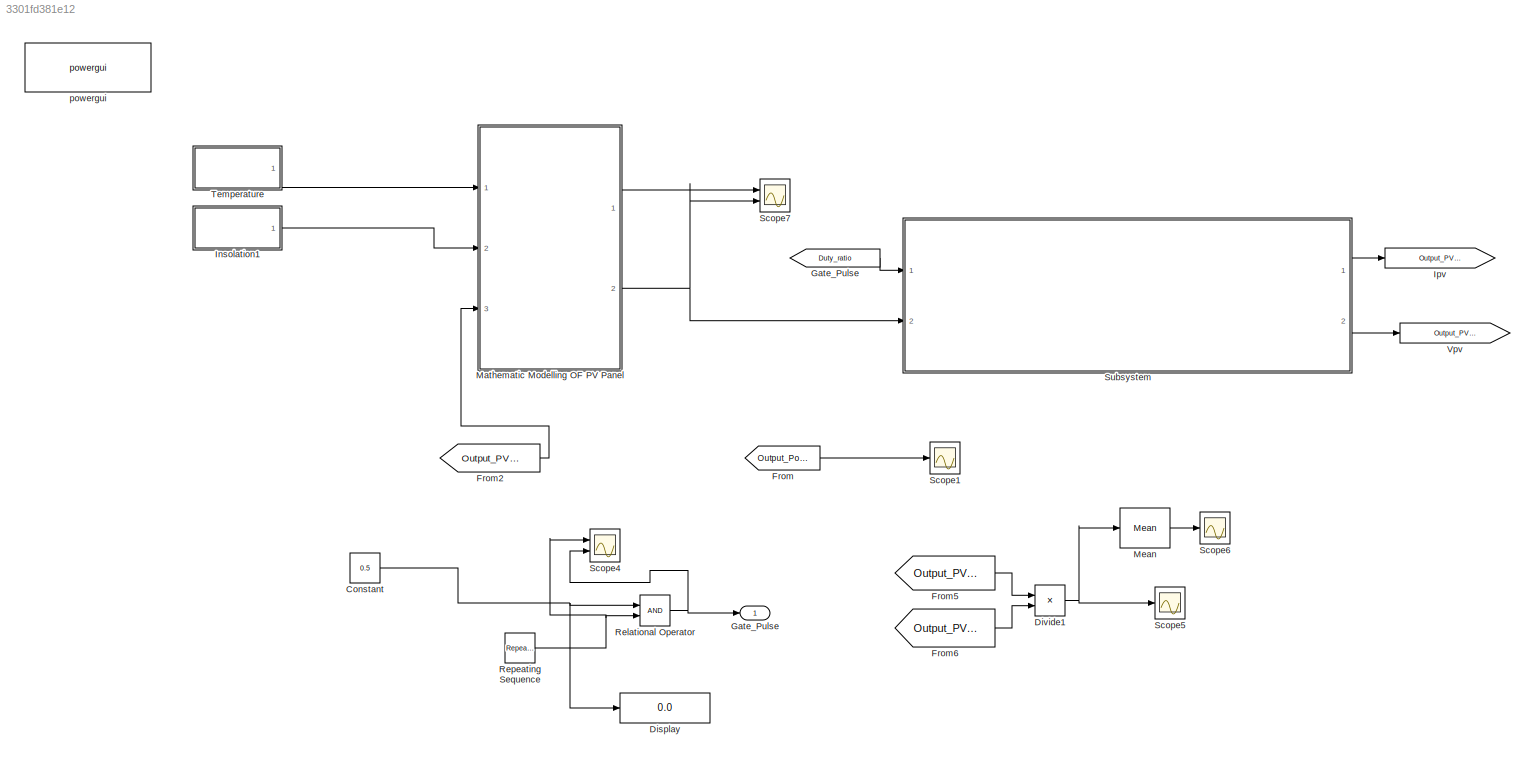
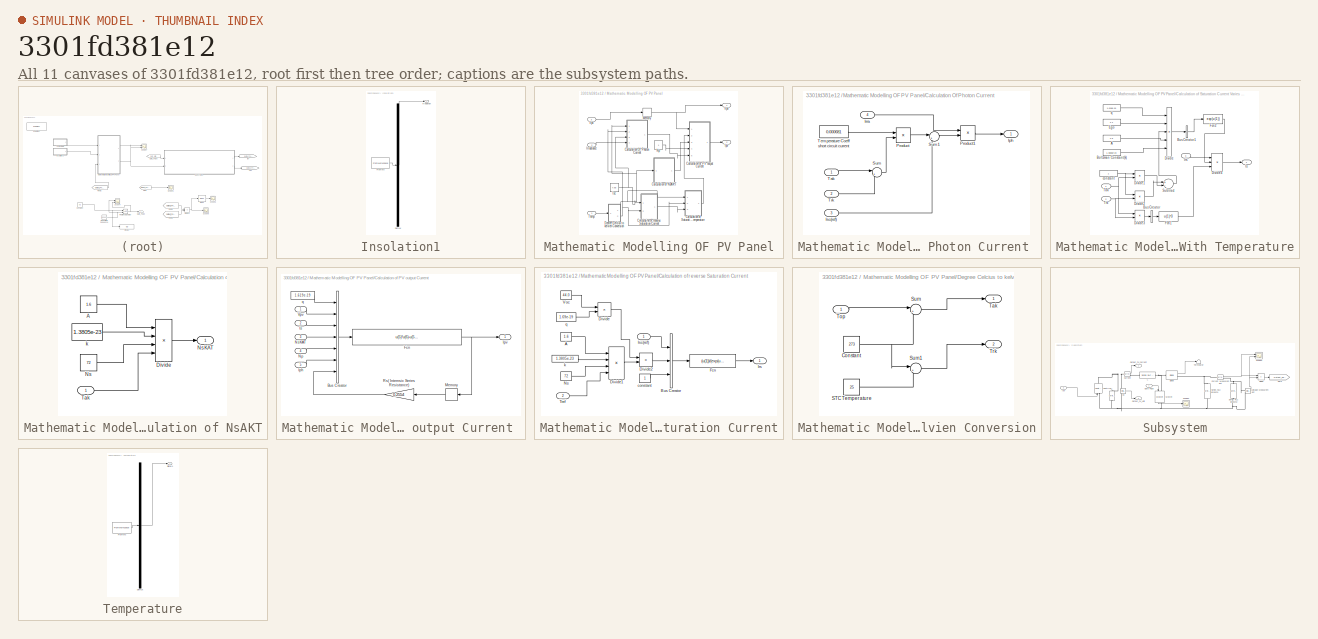
[diagram: thumbnail index - all 11 canvases of the model, root first then tree order]
MODEL slx_3301fd381e12
KIND model
BLOCK [Constant] Constant
  Value = 0.5
BLOCK [Display] Display
  Decimation = 1
  Ports = [1]
BLOCK [Product] Divide1
  InputSameDT = off
  Inputs = **
  OutDataTypeStr = Inherit: Inherit via internal rule
  Ports = [2, 1]
  RndMeth = Floor
  SaturateOnIntegerOverflow = off
BLOCK [From] From
  GotoTag = Output_Power
  TagVisibility = global
BLOCK [From] From2
  GotoTag = Output_PV_volt
  TagVisibility = global
BLOCK [From] From5
  GotoTag = Output_PV_volt
  TagVisibility = global
BLOCK [From] From6
  GotoTag = Output_PV_current
  TagVisibility = global
BLOCK [From] Gate_Pulse
  GotoTag = Duty_ratio
BLOCK [Outport] Gate_Pulse 
  IconDisplay = Port number
BLOCK [SubSystem] Insolation1
  ClipboardFcn = sigbuilder_block('clipboard');
  CloseFcn = sigbuilder_block('close');
  ContinueFcn = sigbuilder_block('continue')
  CopyFcn = sigbuilder_block('copy');
  DeleteFcn = sigbuilder_block('delete');
  LoadFcn = sigbuilder_block('load');
  MaskHideContents = on
  ModelCloseFcn = sigbuilder_block('modelClose');
  NameChangeFcn = sigbuilder_block('namechange');
  OpenFcn = sigbuilder_block('open',[557.25 17.25 550.5 394.5 ]);
  PauseFcn = sigbuilder_block('pause')
  Ports = [0, 1]
  PreSaveFcn = sigbuilder_block('preSave');
  RequestExecContextInheritance = off
  StartFcn = sigbuilder_block('start');
  StopFcn = sigbuilder_block('stop');
  Tag = STV Subsys
BLOCK [Demux] Insolation1/Demux
  Outputs = 1
  Ports = [1, 1]
  Tag = STV Demux
BLOCK [FromWorkspace] Insolation1/FromWs
  SampleTime = 0
  Tag = STV FromWs
  VariableName = tuvar
  ZeroCross = on
BLOCK [Outport] Insolation1/irradiation
  IconDisplay = Port number
  Tag = STV Outport
BLOCK [Goto] Ipv
  GotoTag = Output_PV_current
  TagVisibility = global
BLOCK [SubSystem] Mathematic Modelling OF PV Panel
  Ports = [3, 2]
  RequestExecContextInheritance = off
BLOCK [SubSystem] Mathematic Modelling OF PV Panel/Calculation Of Photon Current 
  Ports = [4, 1]
  RequestExecContextInheritance = off
BLOCK [Outport] Mathematic Modelling OF PV Panel/Calculation Of Photon Current /Iph
  IconDisplay = Port number
BLOCK [Inport] Mathematic Modelling OF PV Panel/Calculation Of Photon Current /Irra
  IconDisplay = Port number
  Port = 4
BLOCK [Inport] Mathematic Modelling OF PV Panel/Calculation Of Photon Current /Isc(ref)
  IconDisplay = Port number
  Port = 3
BLOCK [Product] Mathematic Modelling OF PV Panel/Calculation Of Photon Current /Product
  InputSameDT = off
  OutDataTypeStr = Inherit: Inherit via internal rule
  Ports = [2, 1]
  RndMeth = Floor
  SaturateOnIntegerOverflow = off
BLOCK [Product] Mathematic Modelling OF PV Panel/Calculation Of Photon Current /Product1
  InputSameDT = off
  OutDataTypeStr = Inherit: Inherit via internal rule
  Ports = [2, 1]
  RndMeth = Floor
  SaturateOnIntegerOverflow = off
BLOCK [Sum] Mathematic Modelling OF PV Panel/Calculation Of Photon Current /Sum
  IconShape = round
  InputSameDT = off
  Inputs = |+-
  OutDataTypeStr = Inherit: Inherit via internal rule
  Ports = [2, 1]
  SaturateOnIntegerOverflow = off
BLOCK [Sum] Mathematic Modelling OF PV Panel/Calculation Of Photon Current /Sum1
  IconShape = round
  InputSameDT = off
  Inputs = |++
  OutDataTypeStr = Inherit: Inherit via internal rule
  Ports = [2, 1]
  SaturateOnIntegerOverflow = off
BLOCK [Inport] Mathematic Modelling OF PV Panel/Calculation Of Photon Current /Tak
  IconDisplay = Port number
BLOCK [Constant] Mathematic Modelling OF PV Panel/Calculation Of Photon Current /Temperature Coeff short circuit current 
  Value = 0.000681
BLOCK [Inport] Mathematic Modelling OF PV Panel/Calculation Of Photon Current /Trk
  IconDisplay = Port number
  Port = 2
BLOCK [SubSystem] Mathematic Modelling OF PV Panel/Calculation of NsAKT
  Ports = [1, 1]
  RequestExecContextInheritance = off
BLOCK [Constant] Mathematic Modelling OF PV Panel/Calculation of NsAKT/A
  Value = 1.6
BLOCK [Product] Mathematic Modelling OF PV Panel/Calculation of NsAKT/Divide
  InputSameDT = off
  Inputs = ****
  OutDataTypeStr = Inherit: Inherit via internal rule
  Ports = [4, 1]
  RndMeth = Floor
  SaturateOnIntegerOverflow = off
BLOCK [Constant] Mathematic Modelling OF PV Panel/Calculation of NsAKT/Ns
  Value = 72
BLOCK [Outport] Mathematic Modelling OF PV Panel/Calculation of NsAKT/NsKAT
  IconDisplay = Port number
BLOCK [Inport] Mathematic Modelling OF PV Panel/Calculation of NsAKT/Tak 
  IconDisplay = Port number
BLOCK [Constant] Mathematic Modelling OF PV Panel/Calculation of NsAKT/k
  Value = 1.3805e-23
BLOCK [SubSystem] Mathematic Modelling OF PV Panel/Calculation of PV output Current 
  Ports = [5, 1]
  RequestExecContextInheritance = off
BLOCK [BusCreator] Mathematic Modelling OF PV Panel/Calculation of PV output Current /Bus Creator
  DisplayOption = bar
  Inputs = 7
  Ports = [7, 1]
BLOCK [Fcn] Mathematic Modelling OF PV Panel/Calculation of PV output Current /Fcn
  Expr = u(5)*u(6)-u(5)*u(3)*(exp((u(1)*(u(2)+u(7)))/(u(4))) - 1)
BLOCK [Inport] Mathematic Modelling OF PV Panel/Calculation of PV output Current /Iph
  IconDisplay = Port number
  Port = 5
BLOCK [Outport] Mathematic Modelling OF PV Panel/Calculation of PV output Current /Ipv 
  IconDisplay = Port number
BLOCK [Inport] Mathematic Modelling OF PV Panel/Calculation of PV output Current /Is
  IconDisplay = Port number
  Port = 2
BLOCK [Memory] Mathematic Modelling OF PV Panel/Calculation of PV output Current /Memory
BLOCK [Inport] Mathematic Modelling OF PV Panel/Calculation of PV output Current /Np
  IconDisplay = Port number
  Port = 4
BLOCK [Inport] Mathematic Modelling OF PV Panel/Calculation of PV output Current /NsKAT
  IconDisplay = Port number
  Port = 3
BLOCK [Gain] Mathematic Modelling OF PV Panel/Calculation of PV output Current /Rs( Internsic Series Resistance)
  Gain = 0.2554
  OutDataTypeStr = Inherit: Inherit via internal rule
  ParamDataTypeStr = Inherit: Inherit via internal rule
  SaturateOnIntegerOverflow = off
BLOCK [Inport] Mathematic Modelling OF PV Panel/Calculation of PV output Current /Vpv
  IconDisplay = Port number
BLOCK [Constant] Mathematic Modelling OF PV Panel/Calculation of PV output Current /q
  Value = 1.619e-19
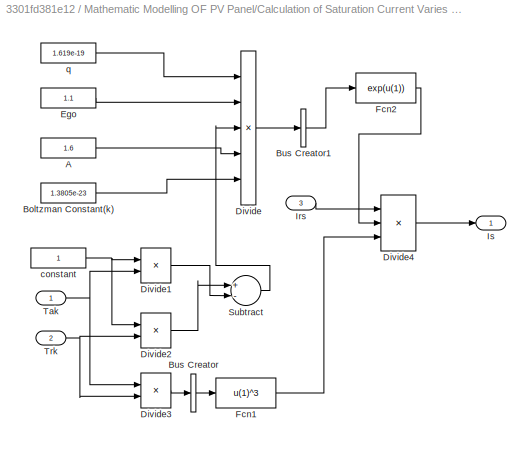
BLOCK [SubSystem] Mathematic Modelling OF PV Panel/Calculation of Saturation Current Varies With Temperature
  Ports = [3, 1]
  RequestExecContextInheritance = off
BLOCK [Constant] Mathematic Modelling OF PV Panel/Calculation of Saturation Current Varies With Temperature/A 
  Value = 1.6
BLOCK [Constant] Mathematic Modelling OF PV Panel/Calculation of Saturation Current Varies With Temperature/Boltzman Constant(k)
  Value = 1.3805e-23
BLOCK [BusCreator] Mathematic Modelling OF PV Panel/Calculation of Saturation Current Varies With Temperature/Bus Creator
  DisplayOption = bar
  Inputs = 1
  Ports = [1, 1]
BLOCK [BusCreator] Mathematic Modelling OF PV Panel/Calculation of Saturation Current Varies With Temperature/Bus Creator1
  DisplayOption = bar
  Inputs = 1
  Ports = [1, 1]
BLOCK [Product] Mathematic Modelling OF PV Panel/Calculation of Saturation Current Varies With Temperature/Divide
  InputSameDT = off
  Inputs = ***//
  OutDataTypeStr = Inherit: Inherit via internal rule
  Ports = [5, 1]
  RndMeth = Floor
  SaturateOnIntegerOverflow = off
BLOCK [Product] Mathematic Modelling OF PV Panel/Calculation of Saturation Current Varies With Temperature/Divide1
  InputSameDT = off
  Inputs = */
  OutDataTypeStr = Inherit: Inherit via internal rule
  Ports = [2, 1]
  RndMeth = Floor
  SaturateOnIntegerOverflow = off
BLOCK [Product] Mathematic Modelling OF PV Panel/Calculation of Saturation Current Varies With Temperature/Divide2
  InputSameDT = off
  Inputs = */
  OutDataTypeStr = Inherit: Inherit via internal rule
  Ports = [2, 1]
  RndMeth = Floor
  SaturateOnIntegerOverflow = off
BLOCK [Product] Mathematic Modelling OF PV Panel/Calculation of Saturation Current Varies With Temperature/Divide3
  InputSameDT = off
  Inputs = */
  OutDataTypeStr = Inherit: Inherit via internal rule
  Ports = [2, 1]
  RndMeth = Floor
  SaturateOnIntegerOverflow = off
BLOCK [Product] Mathematic Modelling OF PV Panel/Calculation of Saturation Current Varies With Temperature/Divide4
  InputSameDT = off
  Inputs = ***
  OutDataTypeStr = Inherit: Inherit via internal rule
  Ports = [3, 1]
  RndMeth = Floor
  SaturateOnIntegerOverflow = off
BLOCK [Constant] Mathematic Modelling OF PV Panel/Calculation of Saturation Current Varies With Temperature/Ego
  Value = 1.1
BLOCK [Fcn] Mathematic Modelling OF PV Panel/Calculation of Saturation Current Varies With Temperature/Fcn1
  Expr = u(1)^3
BLOCK [Fcn] Mathematic Modelling OF PV Panel/Calculation of Saturation Current Varies With Temperature/Fcn2
  Expr = exp(u(1))
BLOCK [Inport] Mathematic Modelling OF PV Panel/Calculation of Saturation Current Varies With Temperature/Irs 
  IconDisplay = Port number
  Port = 3
BLOCK [Outport] Mathematic Modelling OF PV Panel/Calculation of Saturation Current Varies With Temperature/Is
  IconDisplay = Port number
BLOCK [Sum] Mathematic Modelling OF PV Panel/Calculation of Saturation Current Varies With Temperature/Subtract
  InputSameDT = off
  Inputs = +-
  OutDataTypeStr = Inherit: Inherit via internal rule
  Ports = [2, 1]
  SaturateOnIntegerOverflow = off
BLOCK [Inport] Mathematic Modelling OF PV Panel/Calculation of Saturation Current Varies With Temperature/Tak
  IconDisplay = Port number
BLOCK [Inport] Mathematic Modelling OF PV Panel/Calculation of Saturation Current Varies With Temperature/Trk 
  IconDisplay = Port number
  Port = 2
BLOCK [Constant] Mathematic Modelling OF PV Panel/Calculation of Saturation Current Varies With Temperature/constant 
BLOCK [Constant] Mathematic Modelling OF PV Panel/Calculation of Saturation Current Varies With Temperature/q 
  Value = 1.619e-19
BLOCK [SubSystem] Mathematic Modelling OF PV Panel/Calculation of reverse Saturation Current
  Ports = [2, 1]
  RequestExecContextInheritance = off
BLOCK [Constant] Mathematic Modelling OF PV Panel/Calculation of reverse Saturation Current/A
  Value = 1.6
BLOCK [BusCreator] Mathematic Modelling OF PV Panel/Calculation of reverse Saturation Current/Bus Creator
  DisplayOption = bar
  Inputs = 3
  Ports = [3, 1]
BLOCK [Product] Mathematic Modelling OF PV Panel/Calculation of reverse Saturation Current/Divide
  InputSameDT = off
  Inputs = **
  OutDataTypeStr = Inherit: Inherit via internal rule
  Ports = [2, 1]
  RndMeth = Floor
  SaturateOnIntegerOverflow = off
BLOCK [Product] Mathematic Modelling OF PV Panel/Calculation of reverse Saturation Current/Divide1
  InputSameDT = off
  Inputs = ****
  OutDataTypeStr = Inherit: Inherit via internal rule
  Ports = [4, 1]
  RndMeth = Floor
  SaturateOnIntegerOverflow = off
BLOCK [Product] Mathematic Modelling OF PV Panel/Calculation of reverse Saturation Current/Divide2
  InputSameDT = off
  Inputs = */
  OutDataTypeStr = Inherit: Inherit via internal rule
  Ports = [2, 1]
  RndMeth = Floor
  SaturateOnIntegerOverflow = off
BLOCK [Fcn] Mathematic Modelling OF PV Panel/Calculation of reverse Saturation Current/Fcn
  Expr = (u(1))/(exp(u(2))-u(3))
BLOCK [Outport] Mathematic Modelling OF PV Panel/Calculation of reverse Saturation Current/Irs
  IconDisplay = Port number
BLOCK [Inport] Mathematic Modelling OF PV Panel/Calculation of reverse Saturation Current/Isc(ref) 
  IconDisplay = Port number
BLOCK [Constant] Mathematic Modelling OF PV Panel/Calculation of reverse Saturation Current/Ns
  Value = 72
BLOCK [Inport] Mathematic Modelling OF PV Panel/Calculation of reverse Saturation Current/Tref 
  IconDisplay = Port number
  Port = 2
BLOCK [Constant] Mathematic Modelling OF PV Panel/Calculation of reverse Saturation Current/Voc
  Value = 44.0
BLOCK [Constant] Mathematic Modelling OF PV Panel/Calculation of reverse Saturation Current/constant 
BLOCK [Constant] Mathematic Modelling OF PV Panel/Calculation of reverse Saturation Current/k
  Value = 1.3805e-23
BLOCK [Constant] Mathematic Modelling OF PV Panel/Calculation of reverse Saturation Current/q
  Value = 1.69e-19
BLOCK [SubSystem] Mathematic Modelling OF PV Panel/Degree Celcius to kelvien Conversion
  Ports = [1, 2]
  RequestExecContextInheritance = off
BLOCK [Constant] Mathematic Modelling OF PV Panel/Degree Celcius to kelvien Conversion/Constant
  Value = 273
BLOCK [Constant] Mathematic Modelling OF PV Panel/Degree Celcius to kelvien Conversion/STC Temperature
  Value = 25
BLOCK [Sum] Mathematic Modelling OF PV Panel/Degree Celcius to kelvien Conversion/Sum
  IconShape = round
  InputSameDT = off
  Inputs = |++
  OutDataTypeStr = Inherit: Inherit via internal rule
  Ports = [2, 1]
  SaturateOnIntegerOverflow = off
BLOCK [Sum] Mathematic Modelling OF PV Panel/Degree Celcius to kelvien Conversion/Sum1
  IconShape = round
  InputSameDT = off
  Inputs = |++
  OutDataTypeStr = Inherit: Inherit via internal rule
  Ports = [2, 1]
  SaturateOnIntegerOverflow = off
BLOCK [Outport] Mathematic Modelling OF PV Panel/Degree Celcius to kelvien Conversion/Tak
  IconDisplay = Port number
BLOCK [Inport] Mathematic Modelling OF PV Panel/Degree Celcius to kelvien Conversion/Top 
  IconDisplay = Port number
BLOCK [Outport] Mathematic Modelling OF PV Panel/Degree Celcius to kelvien Conversion/Trk
  IconDisplay = Port number
  Port = 2
BLOCK [Outport] Mathematic Modelling OF PV Panel/Ipv
  IconDisplay = Port number
  Port = 2
BLOCK [Inport] Mathematic Modelling OF PV Panel/Irradiance
  IconDisplay = Port number
  Port = 2
BLOCK [Constant] Mathematic Modelling OF PV Panel/Isc
  Value = 7.58
BLOCK [Memory] Mathematic Modelling OF PV Panel/Memory
BLOCK [Constant] Mathematic Modelling OF PV Panel/Np
BLOCK [Inport] Mathematic Modelling OF PV Panel/Temp
  IconDisplay = Port number
BLOCK [Inport] Mathematic Modelling OF PV Panel/Vpv
  IconDisplay = Port number
  Port = 3
BLOCK [Outport] Mathematic Modelling OF PV Panel/Vpv 
  IconDisplay = Port number
BLOCK [Reference] Mean  REF=powerlib_meascontrol/Measurements/Mean
  Freq = 60
  Ports = [1, 1]
  SourceBlock = powerlib_meascontrol/Measurements/Mean
  SourceType = Mean
  Ts = 0
  Vinit = 0
BLOCK [RelationalOperator] Relational Operator
  InputSameDT = off
  OutDataTypeStr = boolean
  Ports = [2, 1]
BLOCK [Reference] Repeating Sequence  REF=simulink/Sources/Repeating
Sequence
  Ports = [0, 1]
  SourceBlock = simulink/Sources/Repeating\nSequence
  SourceType = Repeating table
  rep_seq_t = [0 1/40000 1/20000]
  rep_seq_y = [0 1 0]
BLOCK [Scope] Scope1
  DataFormat = StructureWithTime
  Floating = off
  LimitDataPoints = off
  NumInputPorts = 1
  Ports = [1]
  SaveName = ScopeData2
  ShowLegends = off
  TimeRange = 2
  YMax = 34.75
  YMin = 31.25
  ZoomMode = yonly
BLOCK [Scope] Scope4
  DataFormat = StructureWithTime
  Floating = off
  LimitDataPoints = off
  NumInputPorts = 2
  Ports = [2]
  SaveName = ScopeData5
  ShowLegends = off
  YMax = 1~1
  YMin = 0~0
  ZoomMode = xonly
BLOCK [Scope] Scope5
  DataFormat = StructureWithTime
  Floating = off
  LimitDataPoints = off
  NumInputPorts = 1
  Ports = [1]
  SaveName = ScopeData6
  ShowLegends = off
  TimeRange = 0.8
  YMax = 262.5
  YMin = 222.5
  ZoomMode = yonly
BLOCK [Scope] Scope6
  DataFormat = StructureWithTime
  Floating = off
  LimitDataPoints = off
  NumInputPorts = 1
  Ports = [1]
  SaveName = ScopeData7
  ShowLegends = off
  TimeRange = 0.8
  YMax = 258.65
  YMin = 258.52
  ZoomMode = xonly
BLOCK [Scope] Scope7
  DataFormat = StructureWithTime
  Floating = off
  LimitDataPoints = off
  NumInputPorts = 2
  Ports = [2]
  ShowLegends = off
  YMax = 45.4369~0.74439
  YMin = 45.4369~0.74439
  ZoomMode = yonly
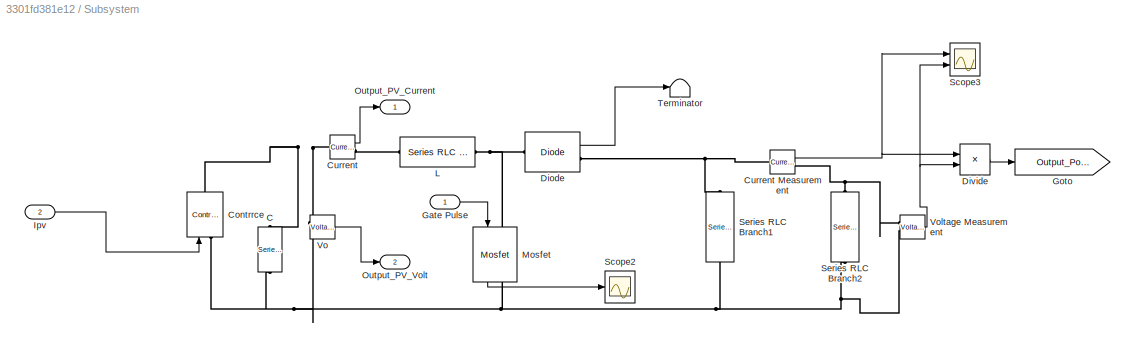
BLOCK [SubSystem] Subsystem
  Ports = [2, 2]
  RequestExecContextInheritance = off
BLOCK [Reference] Subsystem/C  REF=powerlib/Elements/Series RLC Branch
  BranchType = C
  Capacitance = 1e-6
  Inductance = 5e-3
  InitialCurrent = 0
  InitialVoltage = 0
  LConnTagsString = __new0
  Measurements = None
  Ports = [0, 0, 0, 0, 0, 1, 1]
  RConnTagsString = __new0
  Resistance = 10
  SetiL0 = on
  Setx0 = off
  SourceBlock = powerlib/Elements/Series RLC Branch
  SourceType = Series RLC Branch
BLOCK [Reference] Subsystem/Contrrce  REF=powerlib/Electrical
Sources/Controlled Current Source
  Amplitude = 0
  Frequency = 0
  Initialize = on
  Measurements = None
  Phase = 0
  Ports = [1, 0, 0, 0, 0, 1, 1]
  SourceBlock = powerlib/Electrical\nSources/Controlled Current Source
  SourceType = Controlled Current Source
  Source_Type = DC
BLOCK [Reference] Subsystem/Current   REF=powerlib/Measurements/Current Measurement
  OutputType = Complex
  PSBequivalent = 0
  PhasorSimulation = off
  Ports = [0, 1, 0, 0, 0, 1, 1]
  SourceBlock = powerlib/Measurements/Current Measurement
  SourceType = Current Measurement
  UserDataPersistent = on
BLOCK [Reference] Subsystem/Current Measurement  REF=powerlib/Measurements/Current Measurement
  OutputType = Complex
  PSBequivalent = 0
  PhasorSimulation = off
  Ports = [0, 1, 0, 0, 0, 1, 1]
  SourceBlock = powerlib/Measurements/Current Measurement
  SourceType = Current Measurement
  UserDataPersistent = on
BLOCK [Reference] Subsystem/Diode  REF=powerlib/Power
Electronics/Diode
  Cs = 250e-9*0
  IC = 0
  Lon = 0
  Measurements = on
  Ports = [0, 1, 0, 0, 0, 1, 1]
  Ron = 0.001
  Rs = 500*0
  SourceBlock = powerlib/Power\nElectronics/Diode
  SourceType = Diode
  UseSnubber = off
  Vf = 0.8
BLOCK [Product] Subsystem/Divide
  InputSameDT = off
  Inputs = **
  OutDataTypeStr = Inherit: Inherit via internal rule
  Ports = [2, 1]
  RndMeth = Floor
  SaturateOnIntegerOverflow = off
BLOCK [Inport] Subsystem/Gate Pulse
  IconDisplay = Port number
BLOCK [Goto] Subsystem/Goto
  GotoTag = Output_Power
  TagVisibility = global
BLOCK [Inport] Subsystem/Ipv
  IconDisplay = Port number
  Port = 2
BLOCK [Reference] Subsystem/L  REF=powerlib/Elements/Series RLC Branch
  BranchType = L
  Capacitance = 1e-6
  Inductance = 5e-3
  InitialCurrent = 0
  InitialVoltage = 0
  LConnTagsString = __new0
  Measurements = None
  Ports = [0, 0, 0, 0, 0, 1, 1]
  RConnTagsString = __new0
  Resistance = 10
  SetiL0 = on
  Setx0 = off
  SourceBlock = powerlib/Elements/Series RLC Branch
  SourceType = Series RLC Branch
BLOCK [Reference] Subsystem/Mosfet  REF=powerlib/Power
Electronics/Mosfet
  Cs = inf
  IC = 0
  Lon = 0
  Measurements = on
  Ports = [1, 1, 0, 0, 0, 1, 1]
  Rd = 0.01
  Ron = 0.1
  Rs = 1e5
  SourceBlock = powerlib/Power\nElectronics/Mosfet
  SourceType = Mosfet
  Vfd = 0
BLOCK [Outport] Subsystem/Output_PV_Current
  IconDisplay = Port number
BLOCK [Outport] Subsystem/Output_PV_Volt
  IconDisplay = Port number
  Port = 2
BLOCK [Scope] Subsystem/Scope2
  DataFormat = StructureWithTime
  Floating = off
  LimitDataPoints = off
  NumInputPorts = 1
  Ports = [1]
  SaveName = ScopeData3
  ShowLegends = off
  YMax = 49.47525
  YMin = -5.49725
BLOCK [Scope] Subsystem/Scope3
  DataFormat = StructureWithTime
  Floating = off
  LimitDataPoints = off
  NumInputPorts = 2
  Ports = [2]
  SaveName = ScopeData4
  ShowLegends = off
  YMax = 2.536~101.45
  YMin = 2.52~100.8
BLOCK [Reference] Subsystem/Series RLC Branch1  REF=powerlib/Elements/Series RLC Branch
  BranchType = C
  Capacitance = 270e-6
  Inductance = 5e-3
  InitialCurrent = 0
  InitialVoltage = 0
  LConnTagsString = __new0
  Measurements = None
  Ports = [0, 0, 0, 0, 0, 1, 1]
  RConnTagsString = __new0
  Resistance = 1
  SetiL0 = on
  Setx0 = on
  SourceBlock = powerlib/Elements/Series RLC Branch
  SourceType = Series RLC Branch
BLOCK [Reference] Subsystem/Series RLC Branch2  REF=powerlib/Elements/Series RLC Branch
  BranchType = R
  Capacitance = 1e-6
  Inductance = 5e-3
  InitialCurrent = 0
  InitialVoltage = 0
  LConnTagsString = __new0
  Measurements = None
  Ports = [0, 0, 0, 0, 0, 1, 1]
  RConnTagsString = __new0
  Resistance = 60
  SetiL0 = on
  Setx0 = off
  SourceBlock = powerlib/Elements/Series RLC Branch
  SourceType = Series RLC Branch
BLOCK [Terminator] Subsystem/Terminator
BLOCK [Reference] Subsystem/Vo  REF=powerlib/Measurements/Voltage Measurement
  OutputType = Complex
  PSBequivalent = 0
  PhasorSimulation = off
  Ports = [0, 1, 0, 0, 0, 2]
  SourceBlock = powerlib/Measurements/Voltage Measurement
  SourceType = Voltage Measurement
  UserDataPersistent = on
BLOCK [Reference] Subsystem/Voltage Measurement  REF=powerlib/Measurements/Voltage Measurement
  OutputType = Complex
  PSBequivalent = 0
  PhasorSimulation = off
  Ports = [0, 1, 0, 0, 0, 2]
  SourceBlock = powerlib/Measurements/Voltage Measurement
  SourceType = Voltage Measurement
  UserDataPersistent = on
BLOCK [SubSystem] Temperature
  ClipboardFcn = sigbuilder_block('clipboard');
  CloseFcn = sigbuilder_block('close');
  ContinueFcn = sigbuilder_block('continue');
  CopyFcn = sigbuilder_block('copy');
  DeleteFcn = sigbuilder_block('delete');
  LoadFcn = sigbuilder_block('load');
  MaskHideContents = on
  ModelCloseFcn = sigbuilder_block('modelClose');
  NameChangeFcn = sigbuilder_block('namechange');
  OpenFcn = sigbuilder_block('open',[437.25 180 550.5 395.25 ]);
  PauseFcn = sigbuilder_block('pause');
  Ports = [0, 1]
  PreSaveFcn = sigbuilder_block('preSave');
  RequestExecContextInheritance = off
  StartFcn = sigbuilder_block('start');
  StopFcn = sigbuilder_block('stop');
  Tag = STV Subsys
BLOCK [Demux] Temperature/Demux
  Outputs = 1
  Ports = [1, 1]
  Tag = STV Demux
BLOCK [FromWorkspace] Temperature/FromWs
  SampleTime = 0
  Tag = STV FromWs
  VariableName = tuvar
  ZeroCross = on
BLOCK [Outport] Temperature/Signal 1
  IconDisplay = Port number
  Tag = STV Outport
BLOCK [Goto] Vpv
  GotoTag = Output_PV_volt
  TagVisibility = global
BLOCK [Reference] powergui  REF=powerlib/powergui
  DisableRonSwitches = off
  DisableSnubberDevices = off
  DisableVfSwitches = off
  DisplayEquations = off
  DisplayStyle = 1
  EnableUseOfTLC = off
  ErrMax = 1e-4
  Frange = [0:2:500]
  FreqAxis = off
  FunctionMessages = off
  HookPort = off
  Interpol = off
  Iterations = 50
  MaxFrequency = 1000
  Pbase = 100e6
  Ports = []
  Priority = 1
  ResistiveCurrentMeasurement = off
  RestoreLinks = warning
  RmsSteady = 1
  SPID = off
  SampleTime = 1e-6
  ShowGrid = off
  SolverType = Tustin
  SourceBlock = powerlib/powergui
  SourceType = PSB option menu block
  StartTime = 0.0
  SwTol = 0
  Ts = 0
  UnitsV = kV
  UnitsW = MW
  UserDataPersistent = on
  Xlog = on
  Ylog = off
  ZoomFFT = off
  cycles = 1
  display = off
  echomessages = off
  frequency = 60
  frequencyindice = 0
  frequencyindicesteady = 1
  fundamental = 60
  methode = off
  save = off
  structure = 0
  variable = ZData
  x0status = blocks
NET Constant:1 -> Display:1, Relational Operator:1
NET Divide1:1 -> Mean:1, Scope5:1
LINE From2:1 -> Mathematic Modelling OF PV Panel:3
LINE From5:1 -> Divide1:1
LINE From6:1 -> Divide1:2
LINE From:1 -> Scope1:1
LINE Gate_Pulse:1 -> Subsystem:1
LINE Insolation1:1 -> Mathematic Modelling OF PV Panel:2
LINE Mathematic Modelling OF PV Panel/Calculation Of Photon Current /Irra:1 -> Mathematic Modelling OF PV Panel/Calculation Of Photon Current /Product1:1
LINE Mathematic Modelling OF PV Panel/Calculation Of Photon Current /Isc(ref):1 -> Mathematic Modelling OF PV Panel/Calculation Of Photon Current /Sum1:2
LINE Mathematic Modelling OF PV Panel/Calculation Of Photon Current /Product1:1 -> Mathematic Modelling OF PV Panel/Calculation Of Photon Current /Iph:1
LINE Mathematic Modelling OF PV Panel/Calculation Of Photon Current /Product:1 -> Mathematic Modelling OF PV Panel/Calculation Of Photon Current /Sum1:1
LINE Mathematic Modelling OF PV Panel/Calculation Of Photon Current /Sum1:1 -> Mathematic Modelling OF PV Panel/Calculation Of Photon Current /Product1:2
LINE Mathematic Modelling OF PV Panel/Calculation Of Photon Current /Sum:1 -> Mathematic Modelling OF PV Panel/Calculation Of Photon Current /Product:2
LINE Mathematic Modelling OF PV Panel/Calculation Of Photon Current /Tak:1 -> Mathematic Modelling OF PV Panel/Calculation Of Photon Current /Sum:1
LINE Mathematic Modelling OF PV Panel/Calculation Of Photon Current /Temperature Coeff short circuit current :1 -> Mathematic Modelling OF PV Panel/Calculation Of Photon Current /Product:1
LINE Mathematic Modelling OF PV Panel/Calculation Of Photon Current /Trk:1 -> Mathematic Modelling OF PV Panel/Calculation Of Photon Current /Sum:2
LINE Mathematic Modelling OF PV Panel/Calculation Of Photon Current :1 -> Mathematic Modelling OF PV Panel/Calculation of PV output Current :5
LINE Mathematic Modelling OF PV Panel/Calculation of NsAKT/A:1 -> Mathematic Modelling OF PV Panel/Calculation of NsAKT/Divide:1
LINE Mathematic Modelling OF PV Panel/Calculation of NsAKT/Divide:1 -> Mathematic Modelling OF PV Panel/Calculation of NsAKT/NsKAT:1
LINE Mathematic Modelling OF PV Panel/Calculation of NsAKT/Ns:1 -> Mathematic Modelling OF PV Panel/Calculation of NsAKT/Divide:3
LINE Mathematic Modelling OF PV Panel/Calculation of NsAKT/Tak :1 -> Mathematic Modelling OF PV Panel/Calculation of NsAKT/Divide:4
LINE Mathematic Modelling OF PV Panel/Calculation of NsAKT/k:1 -> Mathematic Modelling OF PV Panel/Calculation of NsAKT/Divide:2
LINE Mathematic Modelling OF PV Panel/Calculation of NsAKT:1 -> Mathematic Modelling OF PV Panel/Calculation of PV output Current :3
LINE Mathematic Modelling OF PV Panel/Calculation of PV output Current /Bus Creator:1 -> Mathematic Modelling OF PV Panel/Calculation of PV output Current /Fcn:1
NET Mathematic Modelling OF PV Panel/Calculation of PV output Current /Fcn:1 -> Mathematic Modelling OF PV Panel/Calculation of PV output Current /Ipv :1, Mathematic Modelling OF PV Panel/Calculation of PV output Current /Memory:1
LINE Mathematic Modelling OF PV Panel/Calculation of PV output Current /Iph:1 -> Mathematic Modelling OF PV Panel/Calculation of PV output Current /Bus Creator:6
LINE Mathematic Modelling OF PV Panel/Calculation of PV output Current /Is:1 -> Mathematic Modelling OF PV Panel/Calculation of PV output Current /Bus Creator:3
LINE Mathematic Modelling OF PV Panel/Calculation of PV output Current /Memory:1 -> Mathematic Modelling OF PV Panel/Calculation of PV output Current /Rs( Internsic Series Resistance):1
LINE Mathematic Modelling OF PV Panel/Calculation of PV output Current /Np:1 -> Mathematic Modelling OF PV Panel/Calculation of PV output Current /Bus Creator:5
LINE Mathematic Modelling OF PV Panel/Calculation of PV output Current /NsKAT:1 -> Mathematic Modelling OF PV Panel/Calculation of PV output Current /Bus Creator:4
LINE Mathematic Modelling OF PV Panel/Calculation of PV output Current /Rs( Internsic Series Resistance):1 -> Mathematic Modelling OF PV Panel/Calculation of PV output Current /Bus Creator:7
LINE Mathematic Modelling OF PV Panel/Calculation of PV output Current /Vpv:1 -> Mathematic Modelling OF PV Panel/Calculation of PV output Current /Bus Creator:2
LINE Mathematic Modelling OF PV Panel/Calculation of PV output Current /q:1 -> Mathematic Modelling OF PV Panel/Calculation of PV output Current /Bus Creator:1
LINE Mathematic Modelling OF PV Panel/Calculation of PV output Current :1 -> Mathematic Modelling OF PV Panel/Ipv:1
LINE Mathematic Modelling OF PV Panel/Calculation of Saturation Current Varies With Temperature/A :1 -> Mathematic Modelling OF PV Panel/Calculation of Saturation Current Varies With Temperature/Divide:4
LINE Mathematic Modelling OF PV Panel/Calculation of Saturation Current Varies With Temperature/Boltzman Constant(k):1 -> Mathematic Modelling OF PV Panel/Calculation of Saturation Current Varies With Temperature/Divide:5
LINE Mathematic Modelling OF PV Panel/Calculation of Saturation Current Varies With Temperature/Bus Creator1:1 -> Mathematic Modelling OF PV Panel/Calculation of Saturation Current Varies With Temperature/Fcn2:1
LINE Mathematic Modelling OF PV Panel/Calculation of Saturation Current Varies With Temperature/Bus Creator:1 -> Mathematic Modelling OF PV Panel/Calculation of Saturation Current Varies With Temperature/Fcn1:1
LINE Mathematic Modelling OF PV Panel/Calculation of Saturation Current Varies With Temperature/Divide1:1 -> Mathematic Modelling OF PV Panel/Calculation of Saturation Current Varies With Temperature/Subtract:2
LINE Mathematic Modelling OF PV Panel/Calculation of Saturation Current Varies With Temperature/Divide2:1 -> Mathematic Modelling OF PV Panel/Calculation of Saturation Current Varies With Temperature/Subtract:1
LINE Mathematic Modelling OF PV Panel/Calculation of Saturation Current Varies With Temperature/Divide3:1 -> Mathematic Modelling OF PV Panel/Calculation of Saturation Current Varies With Temperature/Bus Creator:1
LINE Mathematic Modelling OF PV Panel/Calculation of Saturation Current Varies With Temperature/Divide4:1 -> Mathematic Modelling OF PV Panel/Calculation of Saturation Current Varies With Temperature/Is:1
LINE Mathematic Modelling OF PV Panel/Calculation of Saturation Current Varies With Temperature/Divide:1 -> Mathematic Modelling OF PV Panel/Calculation of Saturation Current Varies With Temperature/Bus Creator1:1
LINE Mathematic Modelling OF PV Panel/Calculation of Saturation Current Varies With Temperature/Ego:1 -> Mathematic Modelling OF PV Panel/Calculation of Saturation Current Varies With Temperature/Divide:2
LINE Mathematic Modelling OF PV Panel/Calculation of Saturation Current Varies With Temperature/Fcn1:1 -> Mathematic Modelling OF PV Panel/Calculation of Saturation Current Varies With Temperature/Divide4:3
LINE Mathematic Modelling OF PV Panel/Calculation of Saturation Current Varies With Temperature/Fcn2:1 -> Mathematic Modelling OF PV Panel/Calculation of Saturation Current Varies With Temperature/Divide4:2
LINE Mathematic Modelling OF PV Panel/Calculation of Saturation Current Varies With Temperature/Irs :1 -> Mathematic Modelling OF PV Panel/Calculation of Saturation Current Varies With Temperature/Divide4:1
LINE Mathematic Modelling OF PV Panel/Calculation of Saturation Current Varies With Temperature/Subtract:1 -> Mathematic Modelling OF PV Panel/Calculation of Saturation Current Varies With Temperature/Divide:3
NET Mathematic Modelling OF PV Panel/Calculation of Saturation Current Varies With Temperature/Tak:1 -> Mathematic Modelling OF PV Panel/Calculation of Saturation Current Varies With Temperature/Divide1:2, Mathematic Modelling OF PV Panel/Calculation of Saturation Current Varies With Temperature/Divide3:1
NET Mathematic Modelling OF PV Panel/Calculation of Saturation Current Varies With Temperature/Trk :1 -> Mathematic Modelling OF PV Panel/Calculation of Saturation Current Varies With Temperature/Divide2:2, Mathematic Modelling OF PV Panel/Calculation of Saturation Current Varies With Temperature/Divide3:2
NET Mathematic Modelling OF PV Panel/Calculation of Saturation Current Varies With Temperature/constant :1 -> Mathematic Modelling OF PV Panel/Calculation of Saturation Current Varies With Temperature/Divide1:1, Mathematic Modelling OF PV Panel/Calculation of Saturation Current Varies With Temperature/Divide2:1
LINE Mathematic Modelling OF PV Panel/Calculation of Saturation Current Varies With Temperature/q :1 -> Mathematic Modelling OF PV Panel/Calculation of Saturation Current Varies With Temperature/Divide:1
LINE Mathematic Modelling OF PV Panel/Calculation of Saturation Current Varies With Temperature:1 -> Mathematic Modelling OF PV Panel/Calculation of PV output Current :2
LINE Mathematic Modelling OF PV Panel/Calculation of reverse Saturation Current/A:1 -> Mathematic Modelling OF PV Panel/Calculation of reverse Saturation Current/Divide1:1
LINE Mathematic Modelling OF PV Panel/Calculation of reverse Saturation Current/Bus Creator:1 -> Mathematic Modelling OF PV Panel/Calculation of reverse Saturation Current/Fcn:1
LINE Mathematic Modelling OF PV Panel/Calculation of reverse Saturation Current/Divide1:1 -> Mathematic Modelling OF PV Panel/Calculation of reverse Saturation Current/Divide2:2
LINE Mathematic Modelling OF PV Panel/Calculation of reverse Saturation Current/Divide2:1 -> Mathematic Modelling OF PV Panel/Calculation of reverse Saturation Current/Bus Creator:2
LINE Mathematic Modelling OF PV Panel/Calculation of reverse Saturation Current/Divide:1 -> Mathematic Modelling OF PV Panel/Calculation of reverse Saturation Current/Divide2:1
LINE Mathematic Modelling OF PV Panel/Calculation of reverse Saturation Current/Fcn:1 -> Mathematic Modelling OF PV Panel/Calculation of reverse Saturation Current/Irs:1
LINE Mathematic Modelling OF PV Panel/Calculation of reverse Saturation Current/Isc(ref) :1 -> Mathematic Modelling OF PV Panel/Calculation of reverse Saturation Current/Bus Creator:1
LINE Mathematic Modelling OF PV Panel/Calculation of reverse Saturation Current/Ns:1 -> Mathematic Modelling OF PV Panel/Calculation of reverse Saturation Current/Divide1:3
LINE Mathematic Modelling OF PV Panel/Calculation of reverse Saturation Current/Tref :1 -> Mathematic Modelling OF PV Panel/Calculation of reverse Saturation Current/Divide1:4
LINE Mathematic Modelling OF PV Panel/Calculation of reverse Saturation Current/Voc:1 -> Mathematic Modelling OF PV Panel/Calculation of reverse Saturation Current/Divide:1
LINE Mathematic Modelling OF PV Panel/Calculation of reverse Saturation Current/constant :1 -> Mathematic Modelling OF PV Panel/Calculation of reverse Saturation Current/Bus Creator:3
LINE Mathematic Modelling OF PV Panel/Calculation of reverse Saturation Current/k:1 -> Mathematic Modelling OF PV Panel/Calculation of reverse Saturation Current/Divide1:2
LINE Mathematic Modelling OF PV Panel/Calculation of reverse Saturation Current/q:1 -> Mathematic Modelling OF PV Panel/Calculation of reverse Saturation Current/Divide:2
LINE Mathematic Modelling OF PV Panel/Calculation of reverse Saturation Current:1 -> Mathematic Modelling OF PV Panel/Calculation of Saturation Current Varies With Temperature:3
NET Mathematic Modelling OF PV Panel/Degree Celcius to kelvien Conversion/Constant:1 -> Mathematic Modelling OF PV Panel/Degree Celcius to kelvien Conversion/Sum1:1, Mathematic Modelling OF PV Panel/Degree Celcius to kelvien Conversion/Sum:2
LINE Mathematic Modelling OF PV Panel/Degree Celcius to kelvien Conversion/STC Temperature:1 -> Mathematic Modelling OF PV Panel/Degree Celcius to kelvien Conversion/Sum1:2
LINE Mathematic Modelling OF PV Panel/Degree Celcius to kelvien Conversion/Sum1:1 -> Mathematic Modelling OF PV Panel/Degree Celcius to kelvien Conversion/Trk:1
LINE Mathematic Modelling OF PV Panel/Degree Celcius to kelvien Conversion/Sum:1 -> Mathematic Modelling OF PV Panel/Degree Celcius to kelvien Conversion/Tak:1
LINE Mathematic Modelling OF PV Panel/Degree Celcius to kelvien Conversion/Top :1 -> Mathematic Modelling OF PV Panel/Degree Celcius to kelvien Conversion/Sum:1
NET Mathematic Modelling OF PV Panel/Degree Celcius to kelvien Conversion:1 -> Mathematic Modelling OF PV Panel/Calculation Of Photon Current :1, Mathematic Modelling OF PV Panel/Calculation of NsAKT:1, Mathematic Modelling OF PV Panel/Calculation of Saturation Current Varies With Temperature:1
NET Mathematic Modelling OF PV Panel/Degree Celcius to kelvien Conversion:2 -> Mathematic Modelling OF PV Panel/Calculation Of Photon Current :2, Mathematic Modelling OF PV Panel/Calculation of Saturation Current Varies With Temperature:2, Mathematic Modelling OF PV Panel/Calculation of reverse Saturation Current:2
LINE Mathematic Modelling OF PV Panel/Irradiance:1 -> Mathematic Modelling OF PV Panel/Calculation Of Photon Current :4
NET Mathematic Modelling OF PV Panel/Isc:1 -> Mathematic Modelling OF PV Panel/Calculation Of Photon Current :3, Mathematic Modelling OF PV Panel/Calculation of reverse Saturation Current:1
NET Mathematic Modelling OF PV Panel/Memory:1 -> Mathematic Modelling OF PV Panel/Calculation of PV output Current :1, Mathematic Modelling OF PV Panel/Vpv :1
LINE Mathematic Modelling OF PV Panel/Np:1 -> Mathematic Modelling OF PV Panel/Calculation of PV output Current :4
LINE Mathematic Modelling OF PV Panel/Temp:1 -> Mathematic Modelling OF PV Panel/Degree Celcius to kelvien Conversion:1
LINE Mathematic Modelling OF PV Panel/Vpv:1 -> Mathematic Modelling OF PV Panel/Memory:1
LINE Mathematic Modelling OF PV Panel:1 -> Scope7:1
NET Mathematic Modelling OF PV Panel:2 -> Scope7:2, Subsystem:2
LINE Mean:1 -> Scope6:1
NET Relational Operator:1 -> Gate_Pulse :1, Scope4:2
NET Repeating Sequence:1 -> Relational Operator:2, Scope4:1
LINE Subsystem/Current :1 -> Subsystem/Output_PV_Current:1
NET Subsystem/Current Measurement:1 -> Subsystem/Divide:1, Subsystem/Scope3:1
LINE Subsystem/Diode:1 -> Subsystem/Terminator:1
LINE Subsystem/Divide:1 -> Subsystem/Goto:1
LINE Subsystem/Gate Pulse:1 -> Subsystem/Mosfet:1
LINE Subsystem/Ipv:1 -> Subsystem/Contrrce:1
LINE Subsystem/Mosfet:1 -> Subsystem/Scope2:1
LINE Subsystem/Vo:1 -> Subsystem/Output_PV_Volt:1
NET Subsystem/Voltage Measurement:1 -> Subsystem/Divide:2, Subsystem/Scope3:2
LINE Subsystem:1 -> Ipv:1
LINE Subsystem:2 -> Vpv:1
LINE Temperature:1 -> Mathematic Modelling OF PV Panel:1
PNET net1: Subsystem/C:LConn1 -- Subsystem/Contrrce:RConn1 -- Subsystem/Current :LConn1 -- Subsystem/Vo:LConn1
PNET net2: Subsystem/C:RConn1 -- Subsystem/Contrrce:LConn1 -- Subsystem/Mosfet:RConn1 -- Subsystem/Series RLC Branch1:RConn1 -- Subsystem/Series RLC Branch2:RConn1 -- Subsystem/Vo:LConn2 -- Subsystem/Voltage Measurement:LConn2
PLINE Subsystem/Current :RConn1 -- Subsystem/L:LConn1
PNET net3: Subsystem/Current Measurement:LConn1 -- Subsystem/Diode:RConn1 -- Subsystem/Series RLC Branch1:LConn1
PNET net4: Subsystem/Current Measurement:RConn1 -- Subsystem/Series RLC Branch2:LConn1 -- Subsystem/Voltage Measurement:LConn1
PNET net5: Subsystem/Diode:LConn1 -- Subsystem/L:RConn1 -- Subsystem/Mosfet:LConn1
note: NET lines group one-source signal fan-out (src -> all destinations, sorted); 1:1 wires keep LINE; PNET lines group multi-terminal physical nets as a canonical sorted terminal list (undirected conserving connections); 2-terminal nets keep the pairwise PLINE form
